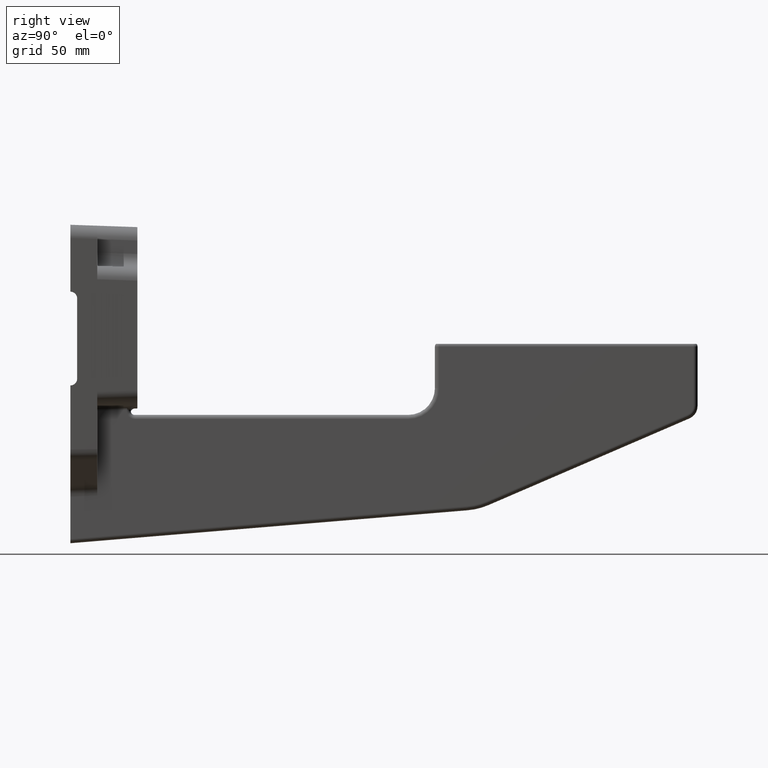
[diagram: clean part render]
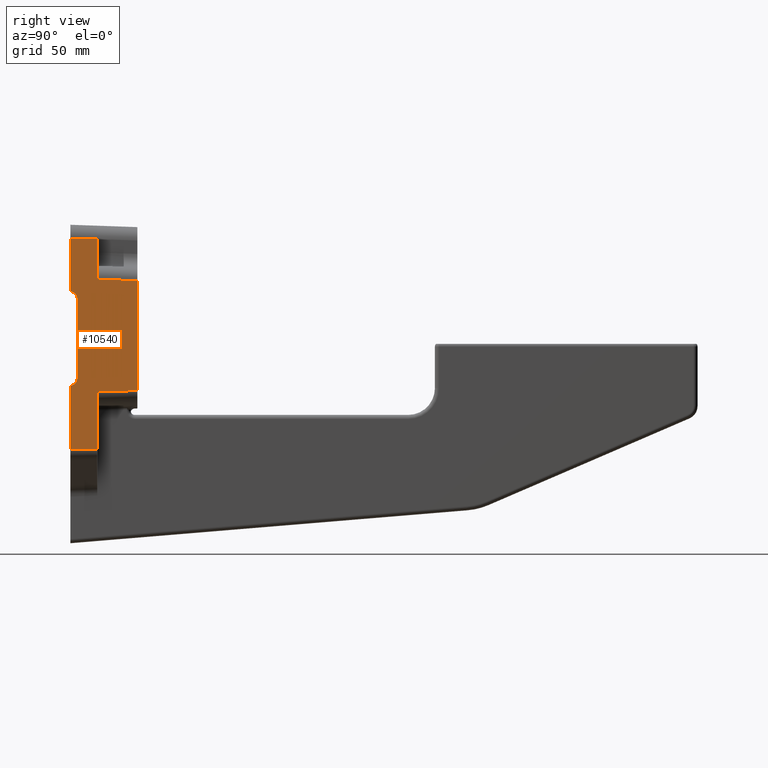
[diagram: same view with one face highlighted and labeled with its STEP entity id]
A machine part, right view. The second image highlights one B-rep face of the part: STEP entity #10540.
In plain terms, the highlighted planar face has unit normal (0.9994, 0.0349, -0).
Its self-contained STEP definition (entity closure, byte-faithful):
#6 = VECTOR ( 'NONE', #12147, 1000.000000000000000 ) ;
#67 = DIRECTION ( 'NONE',  ( 0.0000000000000000000, -2.775557561562851900E-016, -1.000000000000000000 ) ) ;
#82 = CARTESIAN_POINT ( 'NONE',  ( 74.89523769152484100, 2.999999999999967100, -120.0000000000001100 ) ) ;
#326 = LINE ( 'NONE', #9183, #5852 ) ;
#692 = CARTESIAN_POINT ( 'NONE',  ( 74.79295712572603300, 5.928932188134513800, -50.00000000000003600 ) ) ;
#706 = VECTOR ( 'NONE', #5279, 1000.000000000000000 ) ;
#791 = VERTEX_POINT ( 'NONE', #5181 ) ;
#817 = EDGE_CURVE ( 'NONE', #1384, #3121, #8707, .T. ) ;
#968 = ORIENTED_EDGE ( 'NONE', *, *, #1671, .F. ) ;
#1082 = ORIENTED_EDGE ( 'NONE', *, *, #13254, .T. ) ;
#1163 = LINE ( 'NONE', #9004, #3600 ) ;
#1207 = CARTESIAN_POINT ( 'NONE',  ( 74.19682230168986300, 23.00000000000000000, 1.046385200709210900E-013 ) ) ;
#1384 = VERTEX_POINT ( 'NONE', #1439 ) ;
#1439 = CARTESIAN_POINT ( 'NONE',  ( 74.19682230168986300, 22.99999999999996400, -124.8233645458902400 ) ) ;
#1671 = EDGE_CURVE ( 'NONE', #12758, #12909, #10793, .T. ) ;
#1726 = CARTESIAN_POINT ( 'NONE',  ( 74.72063384406610000, 7.999999999999992900, -55.00000000000005000 ) ) ;
#1769 = VECTOR ( 'NONE', #8686, 1000.000000000000100 ) ;
#1830 = VECTOR ( 'NONE', #3523, 1000.000000000000000 ) ;
#1960 = ORIENTED_EDGE ( 'NONE', *, *, #10284, .T. ) ;
#2329 = EDGE_CURVE ( 'NONE', #7316, #12928, #5527, .T. ) ;
#2389 = CARTESIAN_POINT ( 'NONE',  ( 74.72063384406610000, 7.999999999999937800, -115.0000000000001000 ) ) ;
#2462 = CARTESIAN_POINT ( 'NONE',  ( 74.19682230168986300, 22.99999999999995400, -167.4436263436052200 ) ) ;
#2473 =( BOUNDED_CURVE ( )  B_SPLINE_CURVE ( 3, ( #5237, #11525, #6325, #82 ),
 .UNSPECIFIED., .F., .F. ) 
 B_SPLINE_CURVE_WITH_KNOTS ( ( 4, 4 ),
 ( 3.141592653589793100, 4.712388980384682600 ),
 .UNSPECIFIED. ) 
 CURVE ( )  GEOMETRIC_REPRESENTATION_ITEM ( )  RATIONAL_B_SPLINE_CURVE ( ( 1.000000000000000000, 0.8047378541243667100, 0.8047378541243667100, 1.000000000000000000 ) ) 
 REPRESENTATION_ITEM ( '' )  );
#2493 = DIRECTION ( 'NONE',  ( 0.9993908270190957600, 0.03489949670250105200, -9.686556196736460600E-018 ) ) ;
#2524 = ORIENTED_EDGE ( 'NONE', *, *, #2329, .T. ) ;
#2829 = CARTESIAN_POINT ( 'NONE',  ( 74.89523769152482700, 3.000000000000000000, 1.101896351940468000E-013 ) ) ;
#2866 = LINE ( 'NONE', #11161, #8443 ) ;
#2867 = EDGE_CURVE ( 'NONE', #4595, #12909, #3378, .T. ) ;
#2879 = ORIENTED_EDGE ( 'NONE', *, *, #6744, .T. ) ;
#2893 = FACE_OUTER_BOUND ( 'NONE', #4422, .T. ) ;
#2902 = DIRECTION ( 'NONE',  ( 0.0000000000000000000, -2.775557561562851900E-016, -1.000000000000000000 ) ) ;
#3021 = CARTESIAN_POINT ( 'NONE',  ( 73.14919921693743300, 52.99999999999997900, -41.84470905325346000 ) ) ;
#3095 = VERTEX_POINT ( 'NONE', #7657 ) ;
#3121 = VERTEX_POINT ( 'NONE', #2462 ) ;
#3140 = CARTESIAN_POINT ( 'NONE',  ( 74.19682230168986300, 23.00000000000000000, 1.046385200709210900E-013 ) ) ;
#3209 = ORIENTED_EDGE ( 'NONE', *, *, #817, .F. ) ;
#3281 = ORIENTED_EDGE ( 'NONE', *, *, #9582, .T. ) ;
#3378 = LINE ( 'NONE', #5918, #5841 ) ;
#3406 = EDGE_CURVE ( 'NONE', #4838, #3121, #12929, .T. ) ;
#3523 = DIRECTION ( 'NONE',  ( -0.03489386950424795000, 0.9992296851446468300, 0.01795700968286266500 ) ) ;
#3600 = VECTOR ( 'NONE', #13202, 1000.000000000000000 ) ;
#3881 = DIRECTION ( 'NONE',  ( 0.0000000000000000000, -2.775557561562851900E-016, -1.000000000000000000 ) ) ;
#3954 = ORIENTED_EDGE ( 'NONE', *, *, #2867, .T. ) ;
#4293 = CARTESIAN_POINT ( 'NONE',  ( 74.19682230168986300, 22.99999999999999600, -10.79708596850104900 ) ) ;
#4422 = EDGE_LOOP ( 'NONE', ( #4638, #1960, #3281, #2524, #1082, #2879, #8527, #3209, #7574, #5143, #3954, #968 ) ) ;
#4448 = PLANE ( 'NONE',  #11330 ) ;
#4511 = CARTESIAN_POINT ( 'NONE',  ( 74.20004487935352700, 22.90771744979946000, -167.4452847397399800 ) ) ;
#4595 = VERTEX_POINT ( 'NONE', #3021 ) ;
#4638 = ORIENTED_EDGE ( 'NONE', *, *, #12890, .T. ) ;
#4776 = EDGE_CURVE ( 'NONE', #11270, #4595, #2866, .T. ) ;
#4819 = CARTESIAN_POINT ( 'NONE',  ( 74.72063384406608600, 8.000000000000044400, 1.036144975589545600E-013 ) ) ;
#4838 = VERTEX_POINT ( 'NONE', #9245 ) ;
#5143 = ORIENTED_EDGE ( 'NONE', *, *, #4776, .T. ) ;
#5181 = CARTESIAN_POINT ( 'NONE',  ( 74.89523769152482700, 2.999999999999986200, -50.00000000000002100 ) ) ;
#5212 = VECTOR ( 'NONE', #67, 1000.000000000000000 ) ;
#5237 = CARTESIAN_POINT ( 'NONE',  ( 74.72063384406610000, 7.999999999999937800, -115.0000000000001000 ) ) ;
#5279 = DIRECTION ( 'NONE',  ( 0.0000000000000000000, -2.775557561562851900E-016, -1.000000000000000000 ) ) ;
#5527 = LINE ( 'NONE', #4819, #6 ) ;
#5841 = VECTOR ( 'NONE', #10045, 1000.000000000000100 ) ;
#5852 = VECTOR ( 'NONE', #2902, 1000.000000000000000 ) ;
#5860 = CARTESIAN_POINT ( 'NONE',  ( 74.89523769152482700, 2.999999999999986200, -50.00000000000002100 ) ) ;
#5918 = CARTESIAN_POINT ( 'NONE',  ( 74.20897982326116000, 22.65185413299173700, -40.78492844692971900 ) ) ;
#6325 = CARTESIAN_POINT ( 'NONE',  ( 74.79295712572603300, 5.928932188134480100, -120.0000000000001000 ) ) ;
#6688 = VERTEX_POINT ( 'NONE', #6987 ) ;
#6744 = EDGE_CURVE ( 'NONE', #3095, #4838, #326, .T. ) ;
#6987 = CARTESIAN_POINT ( 'NONE',  ( 74.89523769152482700, 2.999999999999997300, -10.09867057866609000 ) ) ;
#7316 = VERTEX_POINT ( 'NONE', #10353 ) ;
#7574 = ORIENTED_EDGE ( 'NONE', *, *, #8843, .T. ) ;
#7635 = CARTESIAN_POINT ( 'NONE',  ( 75.01215752157136800, -0.3481458670082486200, -9.981750748619546700 ) ) ;
#7657 = CARTESIAN_POINT ( 'NONE',  ( 74.89523769152484100, 2.999999999999967100, -120.0000000000001100 ) ) ;
#7992 = CARTESIAN_POINT ( 'NONE',  ( 74.72063384406608600, 7.999999999999993800, -52.07106781186551800 ) ) ;
#7997 =( BOUNDED_CURVE ( )  B_SPLINE_CURVE ( 3, ( #5860, #692, #7992, #1726 ),
 .UNSPECIFIED., .F., .F. ) 
 B_SPLINE_CURVE_WITH_KNOTS ( ( 4, 4 ),
 ( 1.570796326794895900, 3.141592653589793100 ),
 .UNSPECIFIED. ) 
 CURVE ( )  GEOMETRIC_REPRESENTATION_ITEM ( )  RATIONAL_B_SPLINE_CURVE ( ( 1.000000000000000000, 0.8047378541243649400, 0.8047378541243649400, 1.000000000000000000 ) ) 
 REPRESENTATION_ITEM ( '' )  );
#8443 = VECTOR ( 'NONE', #11201, 1000.000000000000000 ) ;
#8527 = ORIENTED_EDGE ( 'NONE', *, *, #3406, .T. ) ;
#8577 = VECTOR ( 'NONE', #3881, 1000.000000000000000 ) ;
#8686 = DIRECTION ( 'NONE',  ( 0.03487826274237468300, -0.9987827659587181800, 0.03487826274237496700 ) ) ;
#8707 = LINE ( 'NONE', #1207, #706 ) ;
#8778 = CARTESIAN_POINT ( 'NONE',  ( 75.00000000000007100, 0.0000000000000000000, 1.110223024625156500E-013 ) ) ;
#8843 = EDGE_CURVE ( 'NONE', #1384, #11270, #1163, .T. ) ;
#8921 = LINE ( 'NONE', #2829, #8577 ) ;
#9004 = CARTESIAN_POINT ( 'NONE',  ( 73.12522803082318000, 53.68644495705959200, -123.8064595529431100 ) ) ;
#9183 = CARTESIAN_POINT ( 'NONE',  ( 74.89523769152482700, 3.000000000000000000, 1.101896351940468000E-013 ) ) ;
#9245 = CARTESIAN_POINT ( 'NONE',  ( 74.89523769152482700, 2.999999999999953800, -167.8030434015615500 ) ) ;
#9582 = EDGE_CURVE ( 'NONE', #791, #7316, #7997, .T. ) ;
#9715 = CARTESIAN_POINT ( 'NONE',  ( 74.19682230168986300, 22.99999999999998900, -40.79708596850100800 ) ) ;
#9817 = DIRECTION ( 'NONE',  ( -0.03489949670250104600, 0.9993908270190956500, 0.0000000000000000000 ) ) ;
#10045 = DIRECTION ( 'NONE',  ( 0.03487826274237468300, -0.9987827659587181800, 0.03487826274237496700 ) ) ;
#10101 = LINE ( 'NONE', #7635, #1769 ) ;
#10155 = CARTESIAN_POINT ( 'NONE',  ( 73.14919921693741900, 52.99999999999997900, -123.8292073591876600 ) ) ;
#10284 = EDGE_CURVE ( 'NONE', #6688, #791, #8921, .T. ) ;
#10353 = CARTESIAN_POINT ( 'NONE',  ( 74.72063384406610000, 7.999999999999992900, -55.00000000000005000 ) ) ;
#10540 = ADVANCED_FACE ( 'NONE', ( #2893 ), #4448, .T. ) ;
#10793 = LINE ( 'NONE', #3140, #5212 ) ;
#11161 = CARTESIAN_POINT ( 'NONE',  ( 73.14919921693743300, 52.99999999999997900, 1.110402412761503300E-013 ) ) ;
#11201 = DIRECTION ( 'NONE',  ( 9.692460581841397500E-018, -0.0000000000000000000, 1.000000000000000000 ) ) ;
#11270 = VERTEX_POINT ( 'NONE', #10155 ) ;
#11330 = AXIS2_PLACEMENT_3D ( 'NONE', #8778, #2493, #9817 ) ;
#11525 = CARTESIAN_POINT ( 'NONE',  ( 74.72063384406610000, 7.999999999999937800, -117.9289321881346400 ) ) ;
#12147 = DIRECTION ( 'NONE',  ( 2.261574135763036500E-017, -9.251858538542965900E-016, -1.000000000000000000 ) ) ;
#12758 = VERTEX_POINT ( 'NONE', #4293 ) ;
#12890 = EDGE_CURVE ( 'NONE', #12758, #6688, #10101, .T. ) ;
#12909 = VERTEX_POINT ( 'NONE', #9715 ) ;
#12928 = VERTEX_POINT ( 'NONE', #2389 ) ;
#12929 = LINE ( 'NONE', #4511, #1830 ) ;
#13202 = DIRECTION ( 'NONE',  ( -0.03488037306912134700, 0.9988431978099451300, 0.03310023811639201800 ) ) ;
#13254 = EDGE_CURVE ( 'NONE', #12928, #3095, #2473, .T. ) ;